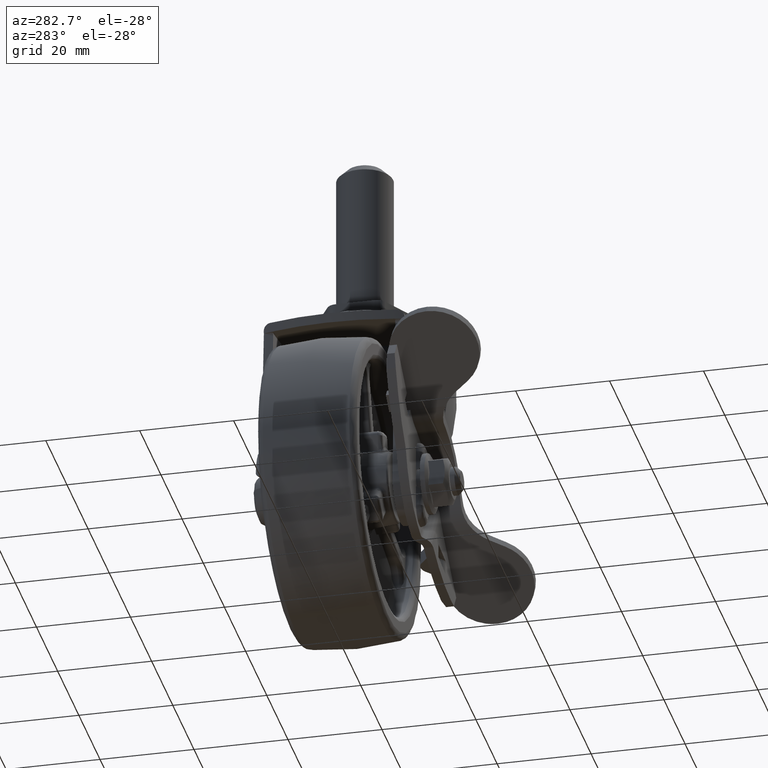
[diagram: clean part render]
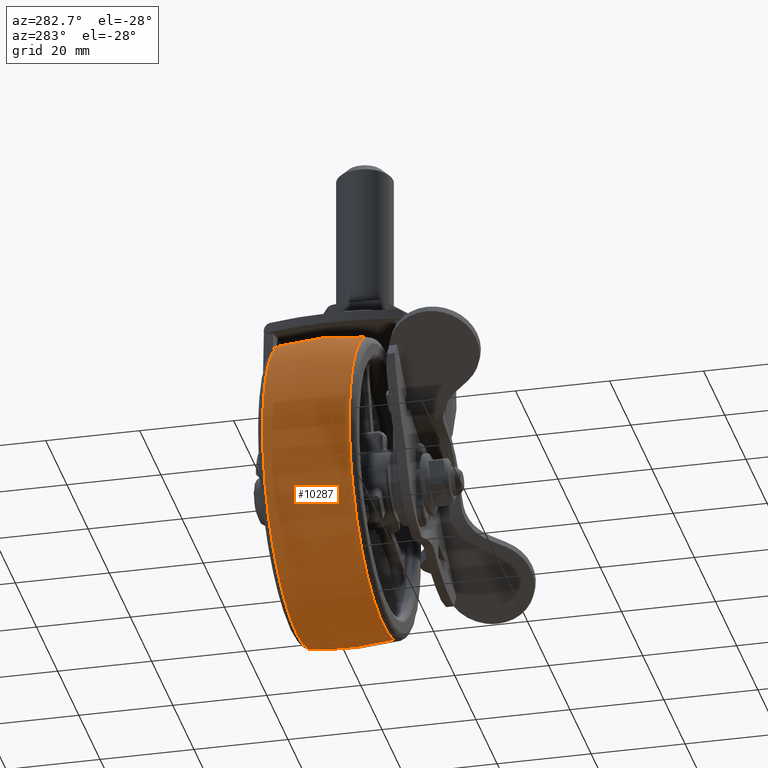
[diagram: same view with one face highlighted and labeled with its STEP entity id]
A machine part, auxiliary view. The second image highlights one B-rep face of the part: STEP entity #10287.
In plain terms, the highlighted face is a freeform B-spline surface patch.
Its self-contained STEP definition (entity closure, byte-faithful):
#10005=CARTESIAN_POINT('',(-28.085906777050941,-9.230754851774695,-14.883277147550061));
#10006=VERTEX_POINT('',#10005);
#10020=CARTESIAN_POINT('',(10.871347030075389,-9.230754666406899,-29.868779414635561));
#10021=VERTEX_POINT('',#10020);
#10022=CARTESIAN_POINT('',(-28.085906777050944,-9.230754851774695,-14.883277147550059));
#10023=CARTESIAN_POINT('',(-15.129817533423557,-9.230754765659132,-39.332429803853671));
#10024=CARTESIAN_POINT('',(10.871347030075389,-9.230754666406899,-29.868779414635561));
#10032=(BOUNDED_CURVE()B_SPLINE_CURVE(2,(#10022,#10023,#10024),.UNSPECIFIED.,.F.,.U.)B_SPLINE_CURVE_WITH_KNOTS((3,3),(0.773792606901180,1.0),.UNSPECIFIED.)CURVE()GEOMETRIC_REPRESENTATION_ITEM()RATIONAL_B_SPLINE_CURVE((0.949556162354179,0.734981554063547,1.0))REPRESENTATION_ITEM(''));
#10033=EDGE_CURVE('',#10006,#10021,#10032,.T.);
#10095=CARTESIAN_POINT('',(-10.871346963976929,-9.230754635934762,29.868779233031539));
#10096=VERTEX_POINT('',#10095);
#10110=CARTESIAN_POINT('',(-10.871346963976929,-9.230754635934762,29.868779233031539));
#10111=CARTESIAN_POINT('',(-40.740124558362425,-9.230754722335137,18.997432784541711));
#10112=CARTESIAN_POINT('',(-29.868778121564969,-9.230754836823452,-10.871346836168080));
#10113=CARTESIAN_POINT('',(-29.116205967459571,-9.230754844748942,-12.939021889146982));
#10114=CARTESIAN_POINT('',(-28.085906777050944,-9.230754851774695,-14.883277147550059));
#10122=(BOUNDED_CURVE()B_SPLINE_CURVE(2,(#10110,#10111,#10112,#10113,#10114),.UNSPECIFIED.,.F.,.U.)B_SPLINE_CURVE_WITH_KNOTS((3,2,3),(0.500000000000000,0.750000000000000,0.773792606901180),.UNSPECIFIED.)CURVE()GEOMETRIC_REPRESENTATION_ITEM()RATIONAL_B_SPLINE_CURVE((1.0,0.707106781186547,1.0,0.972125227123001,0.949556162354179))REPRESENTATION_ITEM(''));
#10123=EDGE_CURVE('',#10096,#10006,#10122,.T.);
#10162=CARTESIAN_POINT('',(10.871347538361020,9.230745121537904,-29.868780811138791));
#10163=VERTEX_POINT('',#10162);
#10164=CARTESIAN_POINT('',(10.871347030075389,-9.230754666406899,-29.868779414635561));
#10165=CARTESIAN_POINT('',(10.993273683024610,-6.941435214759268,-30.203770128447751));
#10166=CARTESIAN_POINT('',(11.197289429227160,-0.781490673440717,-30.764298764280831));
#10167=CARTESIAN_POINT('',(11.074719982532709,5.415290644300327,-30.427541989231500));
#10168=CARTESIAN_POINT('',(10.871347538361020,9.230745121537904,-29.868780811138791));
#10169=B_SPLINE_CURVE_WITH_KNOTS('',3,(#10164,#10165,#10166,#10167,#10168),.UNSPECIFIED.,.F.,.U.,(4,1,4),(-8.582038E-009,6.950739378702208,18.535130670772642),.UNSPECIFIED.);
#10170=EDGE_CURVE('',#10021,#10163,#10169,.T.);
#10187=CARTESIAN_POINT('',(-10.871347538364070,9.230745121480627,29.868780811147179));
#10188=VERTEX_POINT('',#10187);
#10204=CARTESIAN_POINT('',(-10.871346963976929,-9.230754635934762,29.868779233031539));
#10205=CARTESIAN_POINT('',(-10.978031103642300,-7.227612249931327,30.161891487280219));
#10206=CARTESIAN_POINT('',(-11.121853172588949,-3.189698277491780,30.557039359980781));
#10207=CARTESIAN_POINT('',(-11.126963737786721,2.996591771918607,30.571080521959530));
#10208=CARTESIAN_POINT('',(-10.983113582794861,7.132204075573485,30.175855483486679));
#10209=CARTESIAN_POINT('',(-10.871347538364070,9.230745121480627,29.868780811147179));
#10210=B_SPLINE_CURVE_WITH_KNOTS('',3,(#10204,#10205,#10206,#10207,#10208,#10209),.UNSPECIFIED.,.F.,.U.,(4,1,1,4),(-8.582592E-009,6.081851928650805,12.163632190191480,18.535130640357249),.UNSPECIFIED.);
#10211=EDGE_CURVE('',#10096,#10188,#10210,.T.);
#10218=CARTESIAN_POINT('',(-10.819188683998970,-10.161977272480593,29.725475541685963));
#10219=CARTESIAN_POINT('',(-11.115655004978183,-5.117957756560456,30.540010035037991));
#10220=CARTESIAN_POINT('',(-11.115655004978180,0.0,30.540010035037991));
#10221=CARTESIAN_POINT('',(-11.115655004978178,5.117951902508675,30.540010035038001));
#10222=CARTESIAN_POINT('',(-10.819189357311210,10.161965816872327,29.725477391596058));
#10223=CARTESIAN_POINT('',(-40.544664225684940,-10.161977272480595,18.906286857686986));
#10224=CARTESIAN_POINT('',(-41.655665040016167,-5.117957756560456,19.424355030059807));
#10225=CARTESIAN_POINT('',(-41.655665040016181,0.0,19.424355030059814));
#10226=CARTESIAN_POINT('',(-41.655665040016174,5.117951902508676,19.424355030059814));
#10227=CARTESIAN_POINT('',(-40.544666748907268,10.161965816872328,18.906288034284863));
#10228=CARTESIAN_POINT('',(-29.725475541685963,-10.161977272480593,-10.819188683998970));
#10229=CARTESIAN_POINT('',(-30.540010035037991,-5.117957756560456,-11.115655004978183));
#10230=CARTESIAN_POINT('',(-30.540010035037991,0.0,-11.115655004978180));
#10231=CARTESIAN_POINT('',(-30.540010035038001,5.117951902508675,-11.115655004978178));
#10232=CARTESIAN_POINT('',(-29.725477391596058,10.161965816872327,-10.819189357311210));
#10233=CARTESIAN_POINT('',(-18.906286857686986,-10.161977272480595,-40.544664225684940));
#10234=CARTESIAN_POINT('',(-19.424355030059807,-5.117957756560456,-41.655665040016167));
#10235=CARTESIAN_POINT('',(-19.424355030059814,0.0,-41.655665040016181));
#10236=CARTESIAN_POINT('',(-19.424355030059814,5.117951902508676,-41.655665040016174));
#10237=CARTESIAN_POINT('',(-18.906288034284863,10.161965816872328,-40.544666748907268));
#10238=CARTESIAN_POINT('',(10.819188683998970,-10.161977272480593,-29.725475541685963));
#10239=CARTESIAN_POINT('',(11.115655004978183,-5.117957756560456,-30.540010035037991));
#10240=CARTESIAN_POINT('',(11.115655004978180,0.0,-30.540010035037991));
#10241=CARTESIAN_POINT('',(11.115655004978178,5.117951902508675,-30.540010035038001));
#10242=CARTESIAN_POINT('',(10.819189357311210,10.161965816872327,-29.725477391596058));
#10250=(BOUNDED_SURFACE()B_SPLINE_SURFACE(2,2,((#10218,#10223,#10228,#10233,#10238),(#10219,#10224,#10229,#10234,#10239),(#10220,#10225,#10230,#10235,#10240),(#10221,#10226,#10231,#10236,#10241),(#10222,#10227,#10232,#10237,#10242)),.UNSPECIFIED.,.F.,.F.,.U.)B_SPLINE_SURFACE_WITH_KNOTS((3,2,3),(3,2,3),(0.0,10.405301568536130,20.810591513540849),(0.0,53.847763108502363,107.695526217004700),.UNSPECIFIED.)GEOMETRIC_REPRESENTATION_ITEM()RATIONAL_B_SPLINE_SURFACE(((0.960717205955353,0.679329651133623,0.960717205955353,0.679329651133623,0.960717205955353),(0.976615353773954,0.690571339264462,0.976615353773954,0.690571339264462,0.976615353773954),(1.0,0.707106781186548,1.0,0.707106781186548,1.0),(0.976615379896423,0.690571357735837,0.976615379896423,0.690571357735837,0.976615379896423),(0.960717241474298,0.679329676249310,0.960717241474298,0.679329676249310,0.960717241474298)))REPRESENTATION_ITEM('')SURFACE());
#10251=ORIENTED_EDGE('',*,*,#10170,.F.);
#10252=ORIENTED_EDGE('',*,*,#10033,.F.);
#10253=ORIENTED_EDGE('',*,*,#10123,.F.);
#10254=ORIENTED_EDGE('',*,*,#10211,.T.);
#10255=CARTESIAN_POINT('',(-31.239189696059960,9.230745400086580,-5.868831662412092));
#10256=VERTEX_POINT('',#10255);
#10257=CARTESIAN_POINT('',(-10.871347538364070,9.230745121480627,29.868780811147179));
#10258=CARTESIAN_POINT('',(-36.219844334506860,9.230745260771599,20.642682318168440));
#10259=CARTESIAN_POINT('',(-31.239189696059963,9.230745400086580,-5.868831662412092));
#10267=(BOUNDED_CURVE()B_SPLINE_CURVE(2,(#10257,#10258,#10259),.UNSPECIFIED.,.F.,.U.)B_SPLINE_CURVE_WITH_KNOTS((3,3),(0.500000000000000,0.722006111787731),.UNSPECIFIED.)CURVE()GEOMETRIC_REPRESENTATION_ITEM()RATIONAL_B_SPLINE_CURVE((1.0,0.739903661288930,0.941751137357614))REPRESENTATION_ITEM(''));
#10268=EDGE_CURVE('',#10188,#10256,#10267,.T.);
#10269=ORIENTED_EDGE('',*,*,#10268,.T.);
#10270=CARTESIAN_POINT('',(-31.239189696059967,9.230745400086580,-5.868831662412092));
#10271=CARTESIAN_POINT('',(-30.758746175000606,9.230745390411725,-8.426182463096676));
#10272=CARTESIAN_POINT('',(-29.868779092751300,9.230745379011214,-10.871346627146750));
#10273=CARTESIAN_POINT('',(-18.997430676600537,9.230745239748856,-40.740127273381731));
#10274=CARTESIAN_POINT('',(10.871347538361020,9.230745121537904,-29.868780811138791));
#10282=(BOUNDED_CURVE()B_SPLINE_CURVE(2,(#10270,#10271,#10272,#10273,#10274),.UNSPECIFIED.,.F.,.U.)B_SPLINE_CURVE_WITH_KNOTS((3,2,3),(0.722006111787730,0.750000000000000,1.0),.UNSPECIFIED.)CURVE()GEOMETRIC_REPRESENTATION_ITEM()RATIONAL_B_SPLINE_CURVE((0.941751137357614,0.967203119897618,1.0,0.707106781186547,1.0))REPRESENTATION_ITEM(''));
#10283=EDGE_CURVE('',#10256,#10163,#10282,.T.);
#10284=ORIENTED_EDGE('',*,*,#10283,.T.);
#10285=EDGE_LOOP('',(#10251,#10252,#10253,#10254,#10269,#10284));
#10286=FACE_OUTER_BOUND('',#10285,.T.);
#10287=ADVANCED_FACE('',(#10286),#10250,.T.);